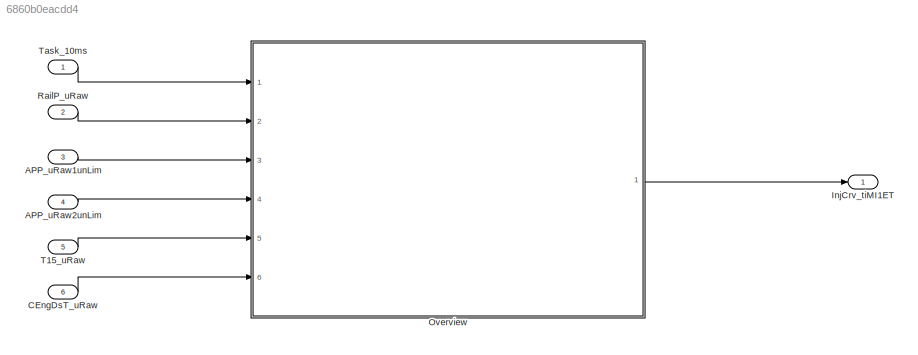
MODEL slx_6860b0eacdd4
KIND model
CONFIG AbsTol = auto
CONFIG EnableMultiTasking = off
CONFIG FixedStep = auto
CONFIG MaxStep = auto
CONFIG MinStep = auto
CONFIG RelTol = 1e-3
CONFIG SampleTimeConstraint = Unconstrained
CONFIG SolverName = VariableStepAuto
CONFIG StartTime = 0.0
CONFIG StopTime = 10.0
BLOCK [Inport] APP_uRaw1unLim
  Port = 3
BLOCK [Inport] APP_uRaw2unLim
  Port = 4
BLOCK [Inport] CEngDsT_uRaw
  Port = 6
BLOCK [Outport] InjCrv_tiMI1ET
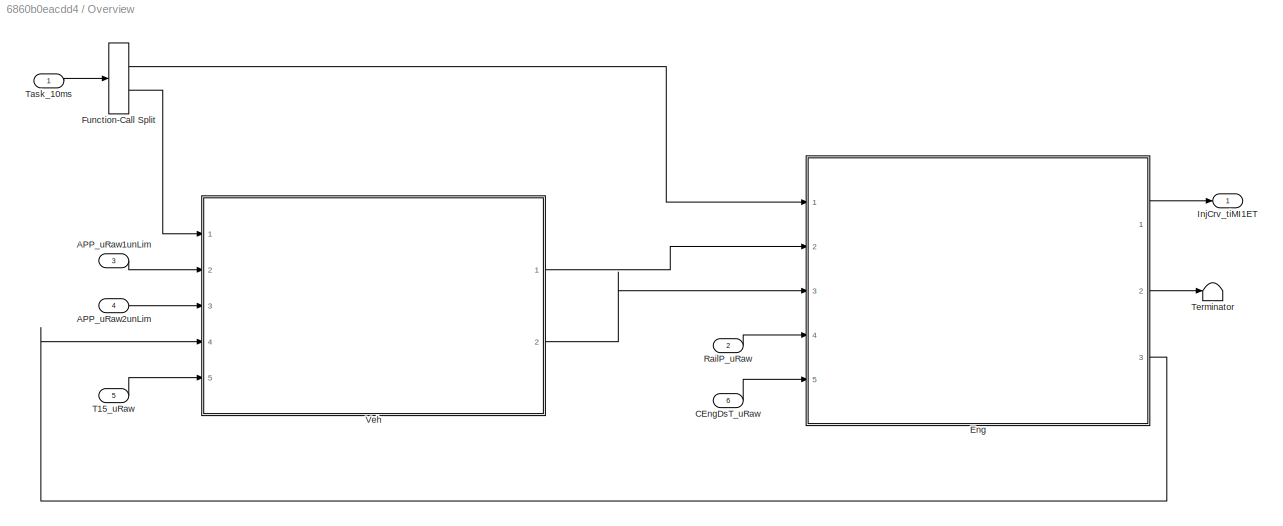
BLOCK [SubSystem] Overview
  Ports = [6, 1]
  RequestExecContextInheritance = off
BLOCK [Inport] Overview/APP_uRaw1unLim
  Port = 3
BLOCK [Inport] Overview/APP_uRaw2unLim
  Port = 4
BLOCK [Inport] Overview/CEngDsT_uRaw
  Port = 6
BLOCK [ModelReference] Overview/Eng
  ModelNameDialog = Eng.slx
  ModelReferenceVersion = 6.4
  Ports = [5, 3]
  ScheduleRates = on
BLOCK [FunctionCallSplit] Overview/Function-Call Split
  IconShape = distinctive
  NumOutputPorts = 2
  OutputPortLayout = default
  Ports = [1, 2]
BLOCK [Outport] Overview/InjCrv_tiMI1ET
BLOCK [Inport] Overview/RailP_uRaw
  Port = 2
BLOCK [Inport] Overview/T15_uRaw
  Port = 5
BLOCK [Inport] Overview/Task_10ms
BLOCK [Terminator] Overview/Terminator
BLOCK [ModelReference] Overview/Veh
  ModelNameDialog = Veh
  ModelReferenceVersion = 6.1
  Ports = [5, 2]
  ScheduleRates = on
BLOCK [Inport] RailP_uRaw
  Port = 2
BLOCK [Inport] T15_uRaw
  Port = 5
BLOCK [Inport] Task_10ms
  OutputFunctionCall = on
LINE APP_uRaw1unLim:1 -> Overview:3
LINE APP_uRaw2unLim:1 -> Overview:4
LINE CEngDsT_uRaw:1 -> Overview:6
LINE Overview/APP_uRaw1unLim:1 -> Overview/Veh:2
LINE Overview/APP_uRaw2unLim:1 -> Overview/Veh:3
LINE Overview/CEngDsT_uRaw:1 -> Overview/Eng:5
LINE Overview/Eng:1 -> Overview/InjCrv_tiMI1ET:1
LINE Overview/Eng:2 -> Overview/Terminator:1
LINE Overview/Eng:3 -> Overview/Veh:4
LINE Overview/Function-Call Split:1 -> Overview/Eng:1
LINE Overview/Function-Call Split:2 -> Overview/Veh:1
LINE Overview/RailP_uRaw:1 -> Overview/Eng:4
LINE Overview/T15_uRaw:1 -> Overview/Veh:5
LINE Overview/Task_10ms:1 -> Overview/Function-Call Split:1
LINE Overview/Veh:1 -> Overview/Eng:2
LINE Overview/Veh:2 -> Overview/Eng:3
LINE Overview:1 -> InjCrv_tiMI1ET:1
LINE RailP_uRaw:1 -> Overview:2
LINE T15_uRaw:1 -> Overview:5
LINE Task_10ms:1 -> Overview:1
